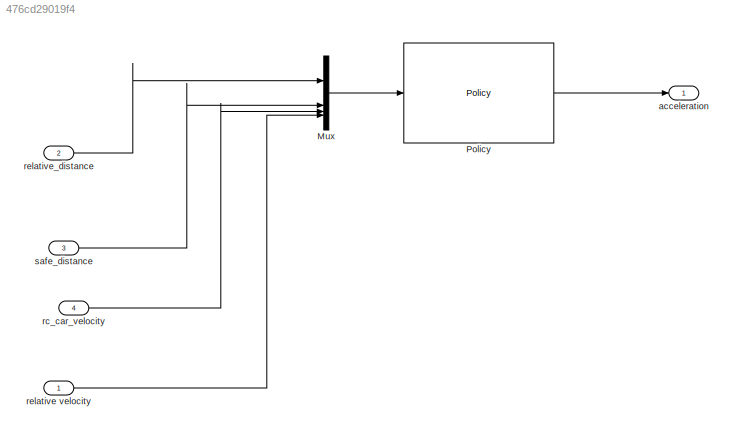
MODEL slx_476cd29019f4
KIND model
CONFIG AbsTol = auto
CONFIG EnableMultiTasking = off
CONFIG FixedStep = auto
CONFIG MaxStep = auto
CONFIG MinStep = auto
CONFIG RelTol = 1e-3
CONFIG SampleTimeConstraint = Unconstrained
CONFIG SolverName = FixedStepAuto
CONFIG StartTime = 0.0
CONFIG StopTime = 10.0
BLOCK [Mux] Mux
  DisplayOption = bar
BLOCK [Reference] Policy  REF=rllib/Policy
  SourceBlock = rllib/Policy
  SourceType = Policy
BLOCK [Outport] acceleration
BLOCK [Inport] rc_car_velocity
  Port = 4
BLOCK [Inport] relative velocity
BLOCK [Inport] relative_distance
  Port = 2
BLOCK [Inport] safe_distance
  Port = 3
LINE Mux:1 -> Policy:1
LINE Policy:1 -> acceleration:1
LINE rc_car_velocity:1 -> Mux:3
LINE relative velocity:1 -> Mux:4
LINE relative_distance:1 -> Mux:1
LINE safe_distance:1 -> Mux:2
